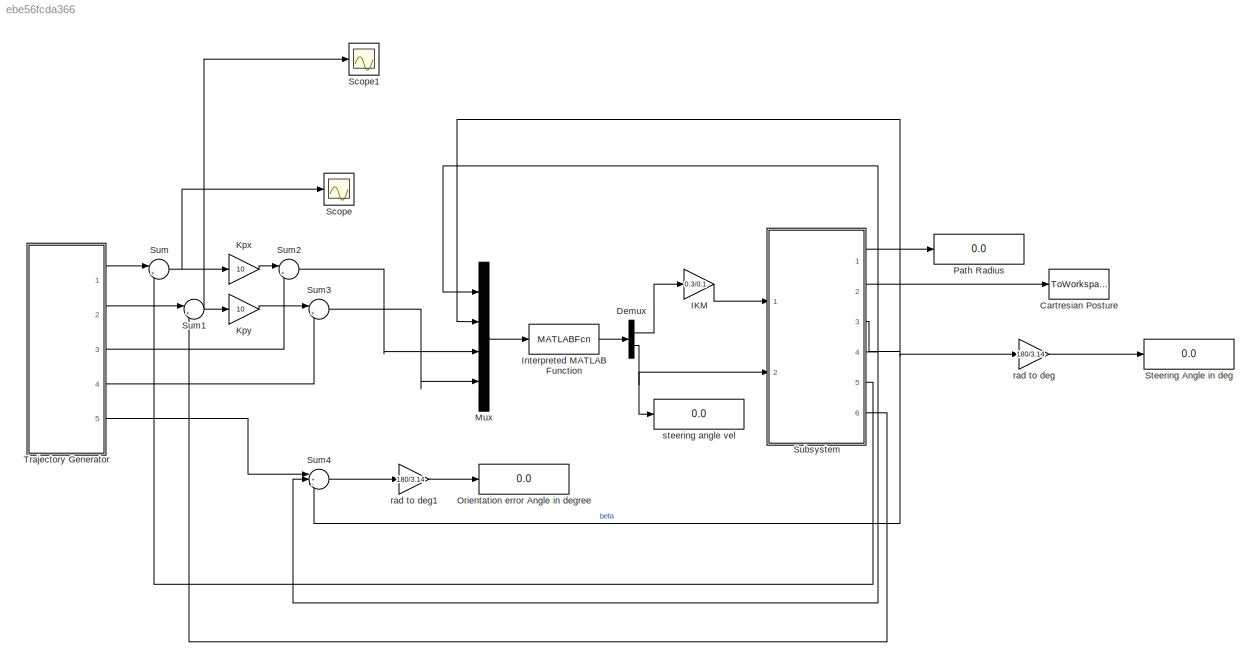
MODEL slx_ebe56fcda366
KIND model
CONFIG AbsTol = auto
CONFIG FixedStep = 0.01
CONFIG MaxStep = auto
CONFIG MinStep = auto
CONFIG RelTol = 1e-3
CONFIG SampleTimeConstraint = Unconstrained
CONFIG Solver = ode3
CONFIG SolverMode = Auto
CONFIG SolverName = ode3
CONFIG StartTime = 0.0
CONFIG StopTime = 20
BLOCK [ToWorkspace] Cartresian Posture
  FixptAsFi = on
  MaxDataPoints = inf
  Ports = [1]
  SampleTime = -1
  Save2DSignal = 3-D array (concatenate along third dimension)
  VariableName = output
BLOCK [Demux] Demux
  DisplayOption = bar
  Outputs = 2
  Ports = [1, 2]
BLOCK [Gain] IKM
  Gain = 0.3/0.1
  Multiplication = Matrix(K*u)
  OutDataTypeStr = Inherit: Inherit via internal rule
  ParamDataTypeStr = Inherit: Inherit via internal rule
  SaturateOnIntegerOverflow = off
BLOCK [MATLABFcn] Interpreted MATLAB Function
  MATLABFcn = kinv
  OutputDimensions = 2
  Ports = [1, 1]
BLOCK [Gain] Kpx
  Gain = 10
  Multiplication = Matrix(K*u)
  OutDataTypeStr = Inherit: Inherit via internal rule
  ParamDataTypeStr = Inherit: Inherit via internal rule
  SaturateOnIntegerOverflow = off
BLOCK [Gain] Kpy
  Gain = 10
  Multiplication = Matrix(K*u)
  OutDataTypeStr = Inherit: Inherit via internal rule
  ParamDataTypeStr = Inherit: Inherit via internal rule
  SaturateOnIntegerOverflow = off
BLOCK [Mux] Mux
  DisplayOption = bar
  Ports = [4, 1]
BLOCK [Display] Orientation error Angle in degree
  Decimation = 1
  Ports = [1]
BLOCK [Display] Path Radius
  Decimation = 1
  Ports = [1]
BLOCK [Scope] Scope
  Floating = off
  NumInputPorts = 1
  Ports = [1]
BLOCK [Scope] Scope1
  Floating = off
  NumInputPorts = 1
  Ports = [1]
  SaveName = ScopeData1
BLOCK [Display] Steering Angle in deg
  Decimation = 1
  Ports = [1]
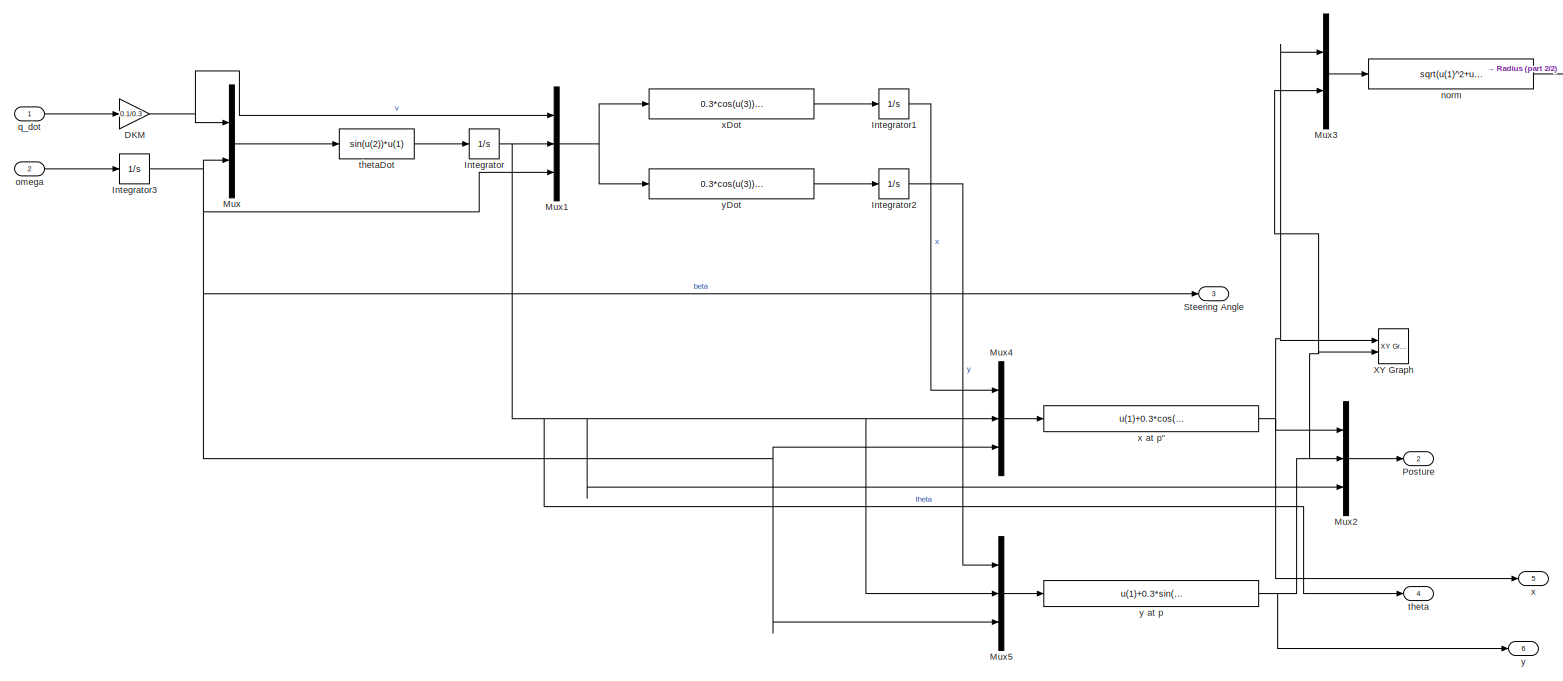
[diagram: Subsystem - part 1/2, most of the canvas]
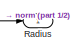
[diagram: Subsystem - part 2/2, top right region]
BLOCK [SubSystem] Subsystem
  Ports = [2, 6]
  RequestExecContextInheritance = off
BLOCK [Gain] Subsystem/DKM
  Gain = 0.1/0.3
  Multiplication = Matrix(K*u)
  OutDataTypeStr = Inherit: Inherit via internal rule
  ParamDataTypeStr = Inherit: Inherit via internal rule
  SaturateOnIntegerOverflow = off
BLOCK [Integrator] Subsystem/Integrator
  Ports = [1, 1]
BLOCK [Integrator] Subsystem/Integrator1
  Ports = [1, 1]
BLOCK [Integrator] Subsystem/Integrator2
  Ports = [1, 1]
BLOCK [Integrator] Subsystem/Integrator3
  Ports = [1, 1]
BLOCK [Mux] Subsystem/Mux
  DisplayOption = bar
  Inputs = 2
  Ports = [2, 1]
BLOCK [Mux] Subsystem/Mux1
  DisplayOption = bar
  Inputs = 3
  Ports = [3, 1]
BLOCK [Mux] Subsystem/Mux2
  DisplayOption = bar
  Inputs = 3
  Ports = [3, 1]
BLOCK [Mux] Subsystem/Mux3
  DisplayOption = bar
  Inputs = 2
  Ports = [2, 1]
BLOCK [Mux] Subsystem/Mux4
  DisplayOption = bar
  Inputs = 3
  Ports = [3, 1]
BLOCK [Mux] Subsystem/Mux5
  DisplayOption = bar
  Inputs = 3
  Ports = [3, 1]
BLOCK [Outport] Subsystem/Posture
  IconDisplay = Port number
  Port = 2
BLOCK [Outport] Subsystem/Radius 
  IconDisplay = Port number
BLOCK [Outport] Subsystem/Steering Angle
  IconDisplay = Port number
  Port = 3
BLOCK [Reference] Subsystem/XY Graph  REF=simulink/Sinks/XY Graph
  Ports = [2]
  SourceBlock = simulink/Sinks/XY Graph
  SourceType = XY scope.
  st = -1
  xmax = 3
  xmin = -3
  ymax = 3
  ymin = -3
BLOCK [Fcn] Subsystem/norm
  Expr = sqrt(u(1)^2+u(2)^2)
BLOCK [Inport] Subsystem/omega
  IconDisplay = Port number
  Port = 2
BLOCK [Inport] Subsystem/q_dot
  IconDisplay = Port number
BLOCK [Outport] Subsystem/theta
  IconDisplay = Port number
  Port = 4
BLOCK [Fcn] Subsystem/thetaDot
  Expr = sin(u(2))*u(1)
BLOCK [Outport] Subsystem/x
  IconDisplay = Port number
  Port = 5
BLOCK [Fcn] Subsystem/x at p"
  Expr = u(1)+0.3*cos(u(2))+0.1*cos(u(2)+u(3))
BLOCK [Fcn] Subsystem/xDot
  Expr = 0.3*cos(u(3))*cos(u(2))*u(1)
BLOCK [Outport] Subsystem/y
  IconDisplay = Port number
  Port = 6
BLOCK [Fcn] Subsystem/y at p
  Expr = u(1)+0.3*sin(u(2))+0.1*sin(u(2)+u(3))
BLOCK [Fcn] Subsystem/yDot
  Expr = 0.3*cos(u(3))*sin(u(2))*u(1)
BLOCK [Sum] Sum
  IconShape = round
  InputSameDT = off
  Inputs = |+-
  OutDataTypeStr = Inherit: Inherit via internal rule
  Ports = [2, 1]
  SaturateOnIntegerOverflow = off
BLOCK [Sum] Sum1
  IconShape = round
  InputSameDT = off
  Inputs = |+-
  OutDataTypeStr = Inherit: Inherit via internal rule
  Ports = [2, 1]
  SaturateOnIntegerOverflow = off
BLOCK [Sum] Sum2
  IconShape = round
  InputSameDT = off
  Inputs = |++
  OutDataTypeStr = Inherit: Inherit via internal rule
  Ports = [2, 1]
  SaturateOnIntegerOverflow = off
BLOCK [Sum] Sum3
  IconShape = round
  InputSameDT = off
  Inputs = |++
  OutDataTypeStr = Inherit: Inherit via internal rule
  Ports = [2, 1]
  SaturateOnIntegerOverflow = off
BLOCK [Sum] Sum4
  IconShape = round
  InputSameDT = off
  Inputs = |+--
  OutDataTypeStr = Inherit: Inherit via internal rule
  Ports = [3, 1]
  SaturateOnIntegerOverflow = off
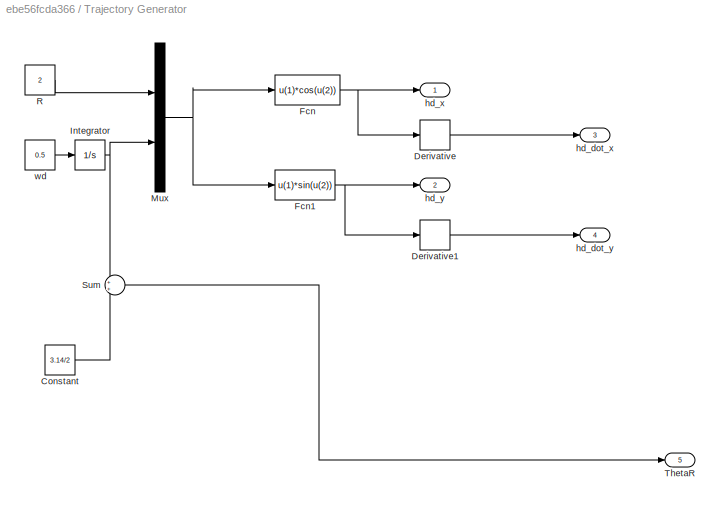
BLOCK [SubSystem] Trajectory Generator
  Ports = [0, 5]
  RequestExecContextInheritance = off
BLOCK [Constant] Trajectory Generator/Constant
  Value = 3.14/2
BLOCK [Derivative] Trajectory Generator/Derivative
BLOCK [Derivative] Trajectory Generator/Derivative1
BLOCK [Fcn] Trajectory Generator/Fcn
  Expr = u(1)*cos(u(2))
BLOCK [Fcn] Trajectory Generator/Fcn1
  Expr = u(1)*sin(u(2))
BLOCK [Integrator] Trajectory Generator/Integrator
  Ports = [1, 1]
BLOCK [Mux] Trajectory Generator/Mux
  DisplayOption = bar
  Inputs = 2
  Ports = [2, 1]
BLOCK [Constant] Trajectory Generator/R
  Value = 2
BLOCK [Sum] Trajectory Generator/Sum
  IconShape = round
  InputSameDT = off
  OutDataTypeStr = Inherit: Inherit via internal rule
  Ports = [2, 1]
  SaturateOnIntegerOverflow = off
BLOCK [Outport] Trajectory Generator/ThetaR
  IconDisplay = Port number
  Port = 5
BLOCK [Outport] Trajectory Generator/hd_dot_x
  IconDisplay = Port number
  Port = 3
BLOCK [Outport] Trajectory Generator/hd_dot_y
  IconDisplay = Port number
  Port = 4
BLOCK [Outport] Trajectory Generator/hd_x
  IconDisplay = Port number
BLOCK [Outport] Trajectory Generator/hd_y
  IconDisplay = Port number
  Port = 2
BLOCK [Constant] Trajectory Generator/wd
  Value = 0.5
BLOCK [Gain] rad to deg
  Gain = 180/3.14
  Multiplication = Matrix(K*u)
  OutDataTypeStr = Inherit: Inherit via internal rule
  ParamDataTypeStr = Inherit: Inherit via internal rule
  SaturateOnIntegerOverflow = off
BLOCK [Gain] rad to deg1
  Gain = 180/3.14
  Multiplication = Matrix(K*u)
  OutDataTypeStr = Inherit: Inherit via internal rule
  ParamDataTypeStr = Inherit: Inherit via internal rule
  SaturateOnIntegerOverflow = off
BLOCK [Display] steering angle vel
  Decimation = 1
  Ports = [1]
LINE Demux:1 -> IKM:1
NET Demux:2 -> Subsystem:2, steering angle vel:1
LINE IKM:1 -> Subsystem:1
LINE Interpreted MATLAB Function:1 -> Demux:1
LINE Kpx:1 -> Sum2:1
LINE Kpy:1 -> Sum3:1
LINE Mux:1 -> Interpreted MATLAB Function:1
NET Subsystem/DKM:1 -> Subsystem/Mux1:1, Subsystem/Mux:1
LINE Subsystem/Integrator1:1 -> Subsystem/Mux4:1
LINE Subsystem/Integrator2:1 -> Subsystem/Mux5:1
NET Subsystem/Integrator3:1 -> Subsystem/Mux1:3, Subsystem/Mux4:3, Subsystem/Mux5:3, Subsystem/Mux:2, Subsystem/Steering Angle:1
NET Subsystem/Integrator:1 -> Subsystem/Mux1:2, Subsystem/Mux2:3, Subsystem/Mux4:2, Subsystem/Mux5:2, Subsystem/theta:1
NET Subsystem/Mux1:1 -> Subsystem/xDot:1, Subsystem/yDot:1
LINE Subsystem/Mux2:1 -> Subsystem/Posture:1
LINE Subsystem/Mux3:1 -> Subsystem/norm:1
LINE Subsystem/Mux4:1 -> Subsystem/x at p":1
LINE Subsystem/Mux5:1 -> Subsystem/y at p:1
LINE Subsystem/Mux:1 -> Subsystem/thetaDot:1
LINE Subsystem/norm:1 -> Subsystem/Radius :1
LINE Subsystem/omega:1 -> Subsystem/Integrator3:1
LINE Subsystem/q_dot:1 -> Subsystem/DKM:1
LINE Subsystem/thetaDot:1 -> Subsystem/Integrator:1
NET Subsystem/x at p":1 -> Subsystem/Mux2:1, Subsystem/Mux3:1, Subsystem/XY Graph:1, Subsystem/x:1
LINE Subsystem/xDot:1 -> Subsystem/Integrator1:1
NET Subsystem/y at p:1 -> Subsystem/Mux2:2, Subsystem/Mux3:2, Subsystem/XY Graph:2, Subsystem/y:1
LINE Subsystem/yDot:1 -> Subsystem/Integrator2:1
LINE Subsystem:1 -> Path Radius:1
LINE Subsystem:2 -> Cartresian Posture:1
NET Subsystem:3 -> Mux:2, Sum4:3, rad to deg:1
NET Subsystem:4 -> Mux:1, Sum4:2
LINE Subsystem:5 -> Sum:2
LINE Subsystem:6 -> Sum1:2
NET Sum1:1 -> Kpy:1, Scope1:1
LINE Sum2:1 -> Mux:3
LINE Sum3:1 -> Mux:4
LINE Sum4:1 -> rad to deg1:1
NET Sum:1 -> Kpx:1, Scope:1
LINE Trajectory Generator/Constant:1 -> Trajectory Generator/Sum:2
LINE Trajectory Generator/Derivative1:1 -> Trajectory Generator/hd_dot_y:1
LINE Trajectory Generator/Derivative:1 -> Trajectory Generator/hd_dot_x:1
NET Trajectory Generator/Fcn1:1 -> Trajectory Generator/Derivative1:1, Trajectory Generator/hd_y:1
NET Trajectory Generator/Fcn:1 -> Trajectory Generator/Derivative:1, Trajectory Generator/hd_x:1
NET Trajectory Generator/Integrator:1 -> Trajectory Generator/Mux:2, Trajectory Generator/Sum:1
NET Trajectory Generator/Mux:1 -> Trajectory Generator/Fcn1:1, Trajectory Generator/Fcn:1
LINE Trajectory Generator/R:1 -> Trajectory Generator/Mux:1
LINE Trajectory Generator/Sum:1 -> Trajectory Generator/ThetaR:1
LINE Trajectory Generator/wd:1 -> Trajectory Generator/Integrator:1
LINE Trajectory Generator:1 -> Sum:1
LINE Trajectory Generator:2 -> Sum1:1
LINE Trajectory Generator:3 -> Sum2:2
LINE Trajectory Generator:4 -> Sum3:2
LINE Trajectory Generator:5 -> Sum4:1
LINE rad to deg1:1 -> Orientation error Angle in degree:1
LINE rad to deg:1 -> Steering Angle in deg:1
note: NET lines group one-source signal fan-out (src -> all destinations, sorted); 1:1 wires keep LINE
